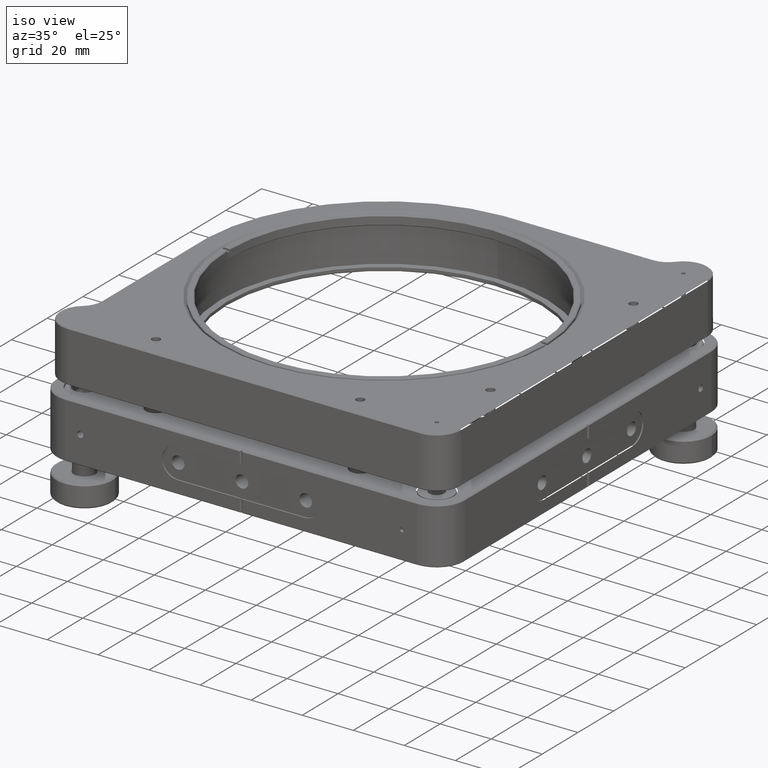
[diagram: clean part render]
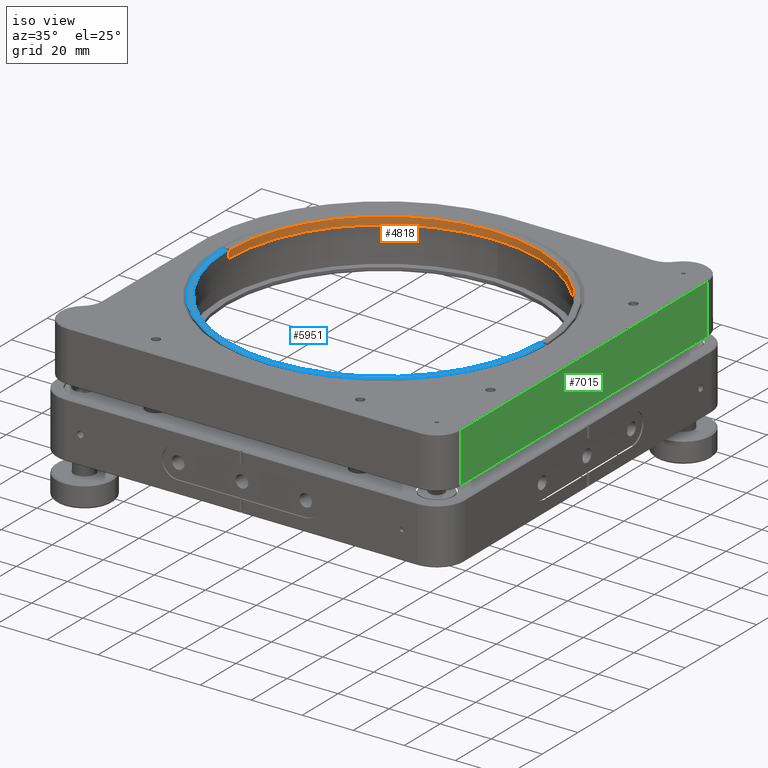
[diagram: same view with three faces highlighted in distinct colors, each labeled with its STEP entity id]
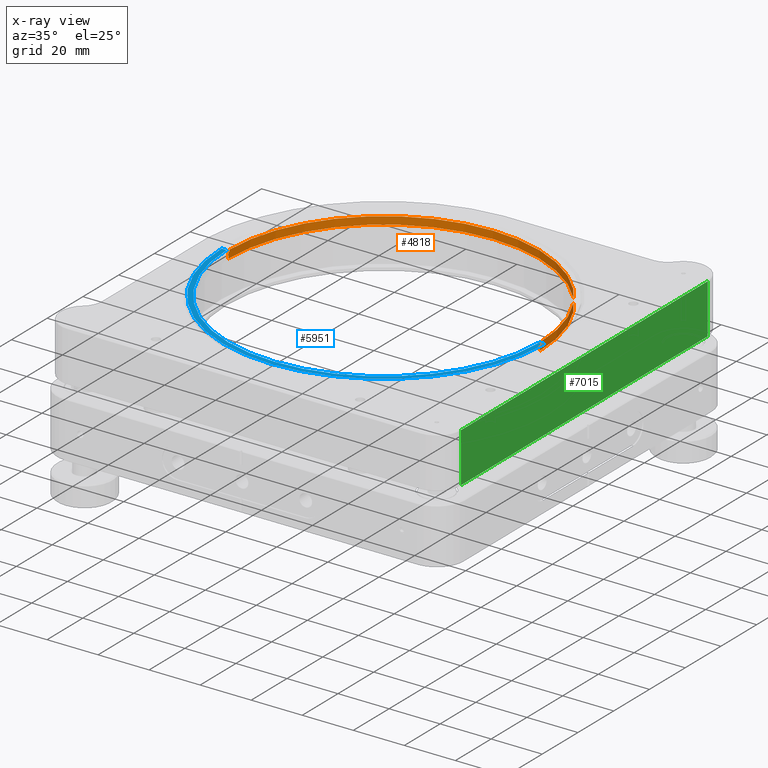
[diagram: x-ray of the same camera — body ghosted, the three highlighted faces saturated]
A machine part, iso view with three faces highlighted in distinct colors.
The next image is the same camera in x-ray (body ghosted, the three faces saturated) — at least one of them is partly hidden behind the body in this view.
Their STEP definitions:

[orange] entity #4818 — the highlighted cylindrical surface (partial cylindrical patch) has radius 61 mm, axis along (0, 0, 1).
#6 = ORIENTED_EDGE ( 'NONE', *, *, #3276, .T. ) ;
#9 = DIRECTION ( 'NONE',  ( 0.000000000000000000, 0.000000000000000000, 1.000000000000000000 ) ) ;
#795 = CARTESIAN_POINT ( 'NONE',  ( -60.99704910895282950, 0.5999999999999445777, 35.14949493661171687 ) ) ;
#982 = CARTESIAN_POINT ( 'NONE',  ( -61.00000000000002842, -4.804080575645895774E-14, 34.49949493661168276 ) ) ;
#1003 = VERTEX_POINT ( 'NONE', #11397 ) ;
#1213 = DIRECTION ( 'NONE',  ( -0.000000000000000000, -0.000000000000000000, -1.000000000000000000 ) ) ;
#1242 = DIRECTION ( 'NONE',  ( 0.000000000000000000, -0.000000000000000000, -1.000000000000000000 ) ) ;
#3254 = CARTESIAN_POINT ( 'NONE',  ( 60.99704910895277266, 0.5999999999999445777, 34.49949493661168276 ) ) ;
#3276 = EDGE_CURVE ( 'NONE', #11168, #13795, #16501, .T. ) ;
#3516 = EDGE_CURVE ( 'NONE', #4815, #9206, #6298, .T. ) ;
#3801 = LINE ( 'NONE', #15468, #6454 ) ;
#3838 = DIRECTION ( 'NONE',  ( 1.000000000000000000, 0.000000000000000000, 0.000000000000000000 ) ) ;
#3867 = DIRECTION ( 'NONE',  ( 0.000000000000000000, 0.000000000000000000, 1.000000000000000000 ) ) ;
#3882 = LINE ( 'NONE', #10350, #9571 ) ;
#4342 = CIRCLE ( 'NONE', #9033, 61.00000000000000000 ) ;
#4665 = CARTESIAN_POINT ( 'NONE',  ( -60.99704910895282950, 0.5999999999999445777, 31.89949493661167779 ) ) ;
#4815 = VERTEX_POINT ( 'NONE', #7110 ) ;
#4818 = ADVANCED_FACE ( 'NONE', ( #12359 ), #5816, .F. ) ;
#4860 = ORIENTED_EDGE ( 'NONE', *, *, #11765, .T. ) ;
#5028 = DIRECTION ( 'NONE',  ( 1.000000000000000000, 0.000000000000000000, 0.000000000000000000 ) ) ;
#5115 = CARTESIAN_POINT ( 'NONE',  ( -2.775554640409769400E-14, -5.551115123125781440E-14, 32.14949493661169555 ) ) ;
#5260 = VERTEX_POINT ( 'NONE', #3254 ) ;
#5276 = ORIENTED_EDGE ( 'NONE', *, *, #15469, .T. ) ;
#5341 = VERTEX_POINT ( 'NONE', #6447 ) ;
#5399 = CIRCLE ( 'NONE', #9812, 61.00000000000000000 ) ;
#5660 = CIRCLE ( 'NONE', #15312, 61.00000000000000000 ) ;
#5816 = CYLINDRICAL_SURFACE ( 'NONE', #16302, 61.00000000000000000 ) ;
#6298 = LINE ( 'NONE', #8971, #8573 ) ;
#6447 = CARTESIAN_POINT ( 'NONE',  ( 60.99999999999997158, -5.551115123125781440E-14, 32.14949493661169555 ) ) ;
#6454 = VECTOR ( 'NONE', #11646, 1000.000000000000000 ) ;
#7110 = CARTESIAN_POINT ( 'NONE',  ( -61.00000000000002842, -4.804080575645895774E-14, 32.14949493661169555 ) ) ;
#7115 = ORIENTED_EDGE ( 'NONE', *, *, #9956, .T. ) ;
#7366 = DIRECTION ( 'NONE',  ( 1.000000000000000000, 0.000000000000000000, 0.000000000000000000 ) ) ;
#7718 = ORIENTED_EDGE ( 'NONE', *, *, #15064, .F. ) ;
#8045 = DIRECTION ( 'NONE',  ( 1.000000000000000000, 0.000000000000000000, 0.000000000000000000 ) ) ;
#8573 = VECTOR ( 'NONE', #3867, 1000.000000000000000 ) ;
#8735 = CARTESIAN_POINT ( 'NONE',  ( 60.99999999999997158, -5.551115123125781440E-14, 34.49949493661168276 ) ) ;
#8971 = CARTESIAN_POINT ( 'NONE',  ( -61.00000000000002842, -4.804080575645895774E-14, 31.89949493661167779 ) ) ;
#9033 = AXIS2_PLACEMENT_3D ( 'NONE', #10394, #1242, #3838 ) ;
#9206 = VERTEX_POINT ( 'NONE', #982 ) ;
#9404 = AXIS2_PLACEMENT_3D ( 'NONE', #5115, #1213, #5028 ) ;
#9571 = VECTOR ( 'NONE', #15548, 1000.000000000000000 ) ;
#9812 = AXIS2_PLACEMENT_3D ( 'NONE', #12896, #15188, #11776 ) ;
#9956 = EDGE_CURVE ( 'NONE', #1003, #11168, #5660, .T. ) ;
#10023 = CARTESIAN_POINT ( 'NONE',  ( -2.775554640409769400E-14, -5.551115123125781440E-14, 31.89949493661167779 ) ) ;
#10076 = VECTOR ( 'NONE', #13638, 1000.000000000000000 ) ;
#10259 = VERTEX_POINT ( 'NONE', #8735 ) ;
#10350 = CARTESIAN_POINT ( 'NONE',  ( 60.99999999999997158, -5.551115123125781440E-14, 31.89949493661167779 ) ) ;
#10394 = CARTESIAN_POINT ( 'NONE',  ( -2.775554640409769400E-14, -5.551115123125781440E-14, 34.49949493661168276 ) ) ;
#10713 = EDGE_CURVE ( 'NONE', #5260, #10259, #5399, .T. ) ;
#11168 = VERTEX_POINT ( 'NONE', #795 ) ;
#11374 = CARTESIAN_POINT ( 'NONE',  ( -60.99704910895282950, 0.5999999999999445777, 34.49949493661168276 ) ) ;
#11397 = CARTESIAN_POINT ( 'NONE',  ( 60.99704910895277266, 0.5999999999999445777, 35.14949493661171687 ) ) ;
#11613 = ORIENTED_EDGE ( 'NONE', *, *, #3516, .F. ) ;
#11646 = DIRECTION ( 'NONE',  ( 0.000000000000000000, 0.000000000000000000, 1.000000000000000000 ) ) ;
#11765 = EDGE_CURVE ( 'NONE', #5260, #1003, #3801, .T. ) ;
#11776 = DIRECTION ( 'NONE',  ( 1.000000000000000000, -2.131628207280300558E-14, 0.000000000000000000 ) ) ;
#12284 = EDGE_LOOP ( 'NONE', ( #11613, #15615, #5276, #15720, #4860, #7115, #6, #7718 ) ) ;
#12359 = FACE_OUTER_BOUND ( 'NONE', #12284, .T. ) ;
#12896 = CARTESIAN_POINT ( 'NONE',  ( -2.775554640409769400E-14, -5.551115123125781440E-14, 34.49949493661168276 ) ) ;
#13436 = EDGE_CURVE ( 'NONE', #4815, #5341, #16864, .T. ) ;
#13638 = DIRECTION ( 'NONE',  ( -0.000000000000000000, -0.000000000000000000, -1.000000000000000000 ) ) ;
#13795 = VERTEX_POINT ( 'NONE', #11374 ) ;
#14086 = DIRECTION ( 'NONE',  ( 0.000000000000000000, 0.000000000000000000, 1.000000000000000000 ) ) ;
#14689 = CARTESIAN_POINT ( 'NONE',  ( -2.775554640409769400E-14, -5.551115123125781440E-14, 35.14949493661171687 ) ) ;
#15064 = EDGE_CURVE ( 'NONE', #9206, #13795, #4342, .T. ) ;
#15188 = DIRECTION ( 'NONE',  ( 0.000000000000000000, -0.000000000000000000, -1.000000000000000000 ) ) ;
#15312 = AXIS2_PLACEMENT_3D ( 'NONE', #14689, #9, #8045 ) ;
#15468 = CARTESIAN_POINT ( 'NONE',  ( 60.99704910895277266, 0.5999999999999445777, 31.89949493661167779 ) ) ;
#15469 = EDGE_CURVE ( 'NONE', #5341, #10259, #3882, .T. ) ;
#15548 = DIRECTION ( 'NONE',  ( 0.000000000000000000, 0.000000000000000000, 1.000000000000000000 ) ) ;
#15615 = ORIENTED_EDGE ( 'NONE', *, *, #13436, .T. ) ;
#15720 = ORIENTED_EDGE ( 'NONE', *, *, #10713, .F. ) ;
#16302 = AXIS2_PLACEMENT_3D ( 'NONE', #10023, #14086, #7366 ) ;
#16501 = LINE ( 'NONE', #4665, #10076 ) ;
#16864 = CIRCLE ( 'NONE', #9404, 61.00000000000000000 ) ;

[blue] entity #5951 — the highlighted planar face has unit normal (0, 0, 1).
#271 = PLANE ( 'NONE',  #1784 ) ;
#310 = DIRECTION ( 'NONE',  ( 1.000000000000000000, 0.000000000000000000, 0.000000000000000000 ) ) ;
#1313 = DIRECTION ( 'NONE',  ( 1.000000000000000000, 0.000000000000000000, -0.000000000000000000 ) ) ;
#1378 = DIRECTION ( 'NONE',  ( 1.000000000000000000, 0.000000000000000000, 0.000000000000000000 ) ) ;
#1521 = DIRECTION ( 'NONE',  ( -0.000000000000000000, -0.000000000000000000, -1.000000000000000000 ) ) ;
#1784 = AXIS2_PLACEMENT_3D ( 'NONE', #4166, #13143, #1313 ) ;
#1823 = VERTEX_POINT ( 'NONE', #8279 ) ;
#1961 = LINE ( 'NONE', #3165, #15726 ) ;
#2355 = CIRCLE ( 'NONE', #3172, 61.25000000000000000 ) ;
#2435 = EDGE_CURVE ( 'NONE', #13862, #3640, #2355, .T. ) ;
#3079 = CARTESIAN_POINT ( 'NONE',  ( -61.24706115398520012, -0.6000000000000553779, 35.39949493661168134 ) ) ;
#3165 = CARTESIAN_POINT ( 'NONE',  ( -50000.00000000000728, -0.6000000000000553779, 35.39949493661168134 ) ) ;
#3172 = AXIS2_PLACEMENT_3D ( 'NONE', #9389, #1521, #310 ) ;
#3200 = ORIENTED_EDGE ( 'NONE', *, *, #2435, .T. ) ;
#3640 = VERTEX_POINT ( 'NONE', #3079 ) ;
#4166 = CARTESIAN_POINT ( 'NONE',  ( -2.775554640409769400E-14, -5.551115123125781440E-14, 35.39949493661168134 ) ) ;
#4245 = FACE_OUTER_BOUND ( 'NONE', #10813, .T. ) ;
#5149 = EDGE_CURVE ( 'NONE', #13862, #7275, #1961, .T. ) ;
#5951 = ADVANCED_FACE ( 'NONE', ( #4245 ), #271, .T. ) ;
#6468 = CIRCLE ( 'NONE', #16683, 63.25000000000005684 ) ;
#7060 = DIRECTION ( 'NONE',  ( 0.000000000000000000, 0.000000000000000000, 1.000000000000000000 ) ) ;
#7275 = VERTEX_POINT ( 'NONE', #10063 ) ;
#8279 = CARTESIAN_POINT ( 'NONE',  ( -63.24715408617220902, -0.6000000000000553779, 35.39949493661168134 ) ) ;
#8597 = EDGE_CURVE ( 'NONE', #1823, #3640, #14515, .T. ) ;
#9129 = EDGE_CURVE ( 'NONE', #1823, #7275, #6468, .T. ) ;
#9389 = CARTESIAN_POINT ( 'NONE',  ( -2.775554640409769400E-14, -5.551115123125781440E-14, 35.39949493661168134 ) ) ;
#9634 = DIRECTION ( 'NONE',  ( 1.000000000000000000, 0.000000000000000000, 0.000000000000000000 ) ) ;
#10063 = CARTESIAN_POINT ( 'NONE',  ( 63.24715408617215218, -0.6000000000000553779, 35.39949493661168134 ) ) ;
#10813 = EDGE_LOOP ( 'NONE', ( #16721, #16491, #15104, #3200 ) ) ;
#11024 = DIRECTION ( 'NONE',  ( 1.000000000000000000, 0.000000000000000000, 0.000000000000000000 ) ) ;
#11339 = CARTESIAN_POINT ( 'NONE',  ( -2.775554640409769400E-14, -5.551115123125781440E-14, 35.39949493661168134 ) ) ;
#11749 = CARTESIAN_POINT ( 'NONE',  ( 61.24706115398514328, -0.6000000000000553779, 35.39949493661168134 ) ) ;
#13143 = DIRECTION ( 'NONE',  ( 0.000000000000000000, 0.000000000000000000, 1.000000000000000000 ) ) ;
#13862 = VERTEX_POINT ( 'NONE', #11749 ) ;
#14515 = LINE ( 'NONE', #15562, #16152 ) ;
#15104 = ORIENTED_EDGE ( 'NONE', *, *, #5149, .F. ) ;
#15562 = CARTESIAN_POINT ( 'NONE',  ( -50000.00000000000728, -0.6000000000000553779, 35.39949493661168134 ) ) ;
#15726 = VECTOR ( 'NONE', #11024, 1000.000000000000000 ) ;
#16152 = VECTOR ( 'NONE', #1378, 1000.000000000000000 ) ;
#16491 = ORIENTED_EDGE ( 'NONE', *, *, #9129, .T. ) ;
#16683 = AXIS2_PLACEMENT_3D ( 'NONE', #11339, #7060, #9634 ) ;
#16721 = ORIENTED_EDGE ( 'NONE', *, *, #8597, .F. ) ;

[green] entity #7015 — the highlighted planar face has unit normal (-1, -0, 0).
#4 = DIRECTION ( 'NONE',  ( 6.383782391594639261E-16, -1.000000000000000000, 2.637297123834378624E-36 ) ) ;
#106 = AXIS2_PLACEMENT_3D ( 'NONE', #7755, #13006, #15796 ) ;
#360 = ORIENTED_EDGE ( 'NONE', *, *, #13309, .T. ) ;
#698 = VECTOR ( 'NONE', #7174, 1000.000000000000000 ) ;
#953 = LINE ( 'NONE', #13132, #1118 ) ;
#1024 = LINE ( 'NONE', #8812, #12791 ) ;
#1118 = VECTOR ( 'NONE', #4, 1000.000000000000000 ) ;
#1492 = EDGE_CURVE ( 'NONE', #16889, #12210, #1024, .T. ) ;
#1593 = EDGE_CURVE ( 'NONE', #12210, #8916, #4924, .T. ) ;
#3174 = EDGE_CURVE ( 'NONE', #8916, #7194, #16255, .T. ) ;
#3565 = ORIENTED_EDGE ( 'NONE', *, *, #3174, .T. ) ;
#4206 = FACE_OUTER_BOUND ( 'NONE', #6032, .T. ) ;
#4519 = ORIENTED_EDGE ( 'NONE', *, *, #1492, .T. ) ;
#4924 = LINE ( 'NONE', #7603, #7620 ) ;
#5594 = CARTESIAN_POINT ( 'NONE',  ( 78.50000000000058265, 69.00000000000066791, 35.14949493661170266 ) ) ;
#5714 = CARTESIAN_POINT ( 'NONE',  ( 78.50000000000058265, 69.00000000000066791, 15.64949493661167423 ) ) ;
#6032 = EDGE_LOOP ( 'NONE', ( #4519, #14881, #3565, #360 ) ) ;
#6308 = DIRECTION ( 'NONE',  ( -1.460576560598799511E-21, 4.894246277413214072E-36, -1.000000000000000000 ) ) ;
#7015 = ADVANCED_FACE ( 'NONE', ( #4206 ), #9479, .F. ) ;
#7174 = DIRECTION ( 'NONE',  ( 1.460576560598799511E-21, -4.894246277413214072E-36, 1.000000000000000000 ) ) ;
#7194 = VERTEX_POINT ( 'NONE', #5594 ) ;
#7603 = CARTESIAN_POINT ( 'NONE',  ( 78.50000000000068212, -78.50000000000065370, 15.64949493661167423 ) ) ;
#7620 = VECTOR ( 'NONE', #10180, 1000.000000000000000 ) ;
#7755 = CARTESIAN_POINT ( 'NONE',  ( 78.50000000000068212, -78.50000000000065370, 35.39949493661167423 ) ) ;
#8812 = CARTESIAN_POINT ( 'NONE',  ( 78.50000000000066791, -69.00000000000065370, 35.39949493661167423 ) ) ;
#8916 = VERTEX_POINT ( 'NONE', #5714 ) ;
#9479 = PLANE ( 'NONE',  #106 ) ;
#10180 = DIRECTION ( 'NONE',  ( -6.383782391594639261E-16, 1.000000000000000000, -2.637297123834378624E-36 ) ) ;
#10397 = CARTESIAN_POINT ( 'NONE',  ( 78.50000000000066791, -69.00000000000065370, 35.14949493661170266 ) ) ;
#12210 = VERTEX_POINT ( 'NONE', #13285 ) ;
#12791 = VECTOR ( 'NONE', #6308, 1000.000000000000000 ) ;
#13006 = DIRECTION ( 'NONE',  ( -1.000000000000000000, -6.383782391594640247E-16, 1.460576560598799511E-21 ) ) ;
#13132 = CARTESIAN_POINT ( 'NONE',  ( 78.50000000000066791, -69.00000000000065370, 35.14949493661170266 ) ) ;
#13285 = CARTESIAN_POINT ( 'NONE',  ( 78.50000000000066791, -69.00000000000065370, 15.64949493661167423 ) ) ;
#13309 = EDGE_CURVE ( 'NONE', #7194, #16889, #953, .T. ) ;
#14881 = ORIENTED_EDGE ( 'NONE', *, *, #1593, .T. ) ;
#15796 = DIRECTION ( 'NONE',  ( 1.460576560598799511E-21, -4.894246277413214072E-36, 1.000000000000000000 ) ) ;
#16255 = LINE ( 'NONE', #16342, #698 ) ;
#16342 = CARTESIAN_POINT ( 'NONE',  ( 78.50000000000058265, 69.00000000000066791, 35.39949493661167423 ) ) ;
#16889 = VERTEX_POINT ( 'NONE', #10397 ) ;